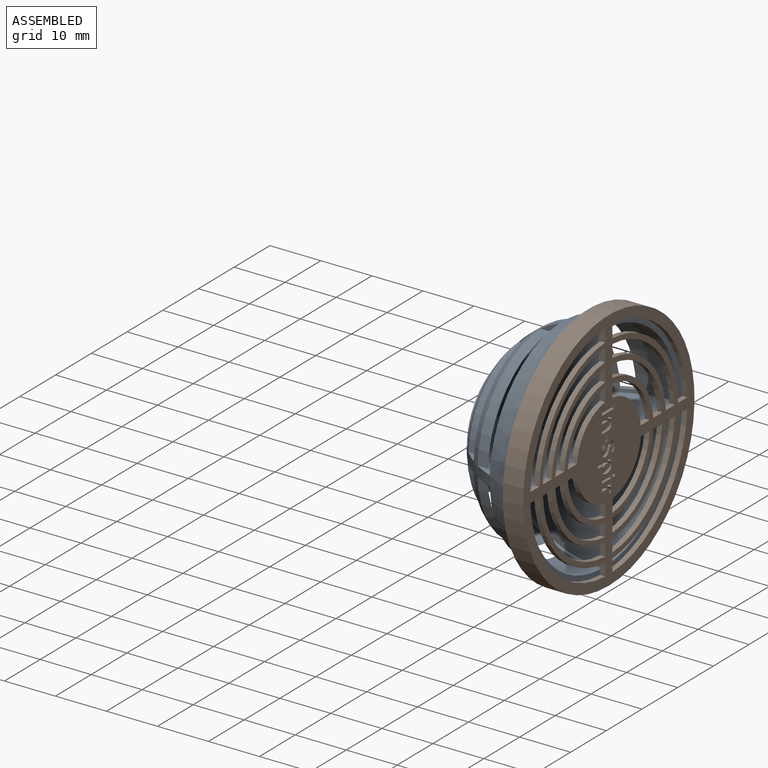
[diagram: assembled view]
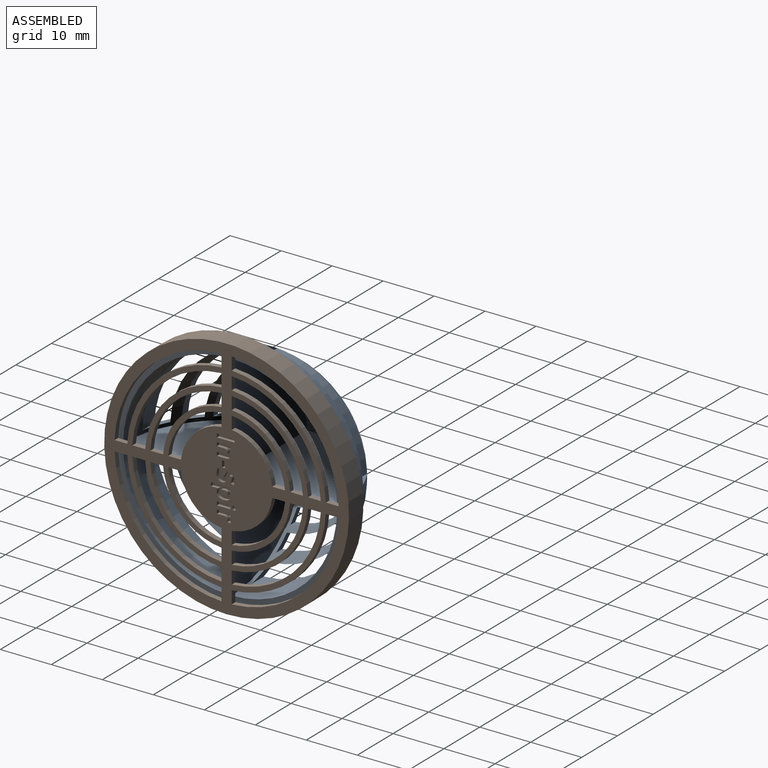
[diagram: assembled view, second angle]
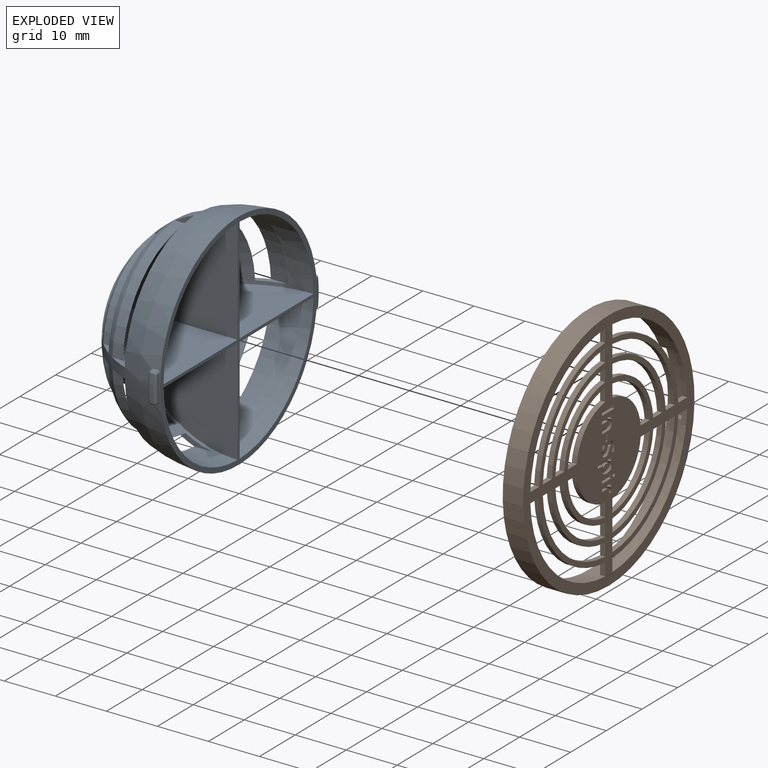
[diagram: exploded view]
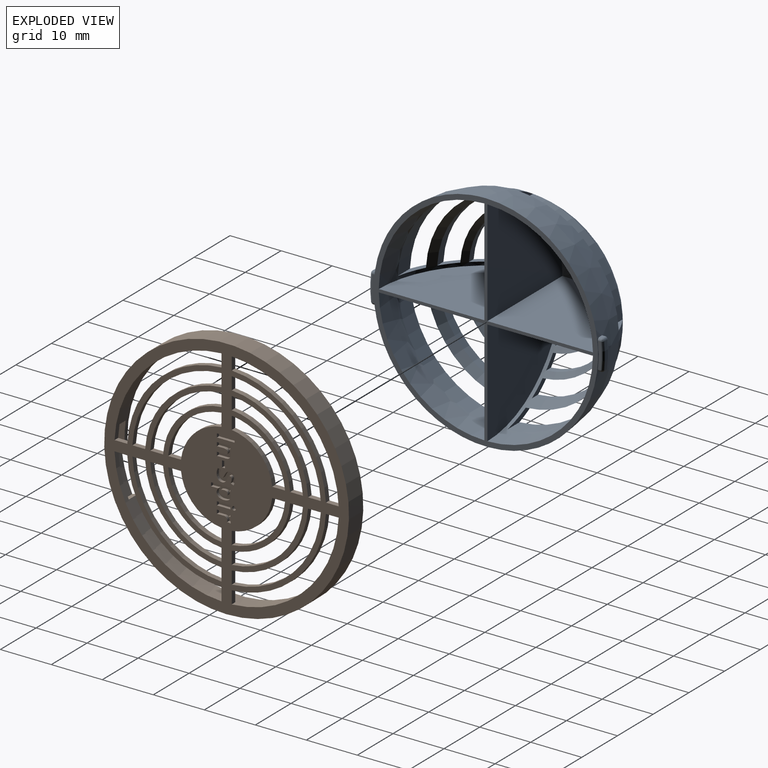
[diagram: exploded view, second angle]
ASSEMBLY  parts=2 mates=2
PART A: 114 faces, bbox 22.5x44.5x46.8 mm
  f0: sphere r=21mm, area 329.1mm2, adj f6,f15,f16,f17,f18,f19,f20,f21
  f1: sphere r=21mm, area 329.1mm2, adj f6,f31,f32,f33,f34,f47,f48,f49
  f2: sphere r=21mm, area 329.1mm2, adj f6,f27,f28,f29,f30,f55,f56,f57
  f3: plane 1.3x0.61mm, normal (0,-1,0), area 0.4mm2, adj f4,f78,f87,f91,f93
  f4: sphere r=22mm, area 1829.3mm2, adj f3,f6,f7,f8,f9,f10,f11,f12
  f5: sphere r=21mm, area 329.1mm2, adj f6,f7,f8,f9,f10,f11,f12,f13
  f6: plane 44.17x44.02mm, normal (1,0,0), area 184.9mm2, adj f0,f1,f2,f4,f5,f78,f80,f106
  f7: plane 7.22x1.92mm, normal (0,-1,0), area 4.8mm2, adj f4,f5,f8,f10
  f8: cylinder r=20.5mm len=19.48mm, axis (1,0,0), area 103.6mm2, adj f4,f5,f7,f9
  f9: plane 7.22x1.92mm, normal (0,0,1), area 4.8mm2, adj f4,f5,f8,f10
  f10: cylinder r=18.6mm len=17.57mm, axis (1,0,0), area 54.4mm2, adj f4,f5,f7,f9
  f11: plane 2.45x2.36mm, normal (0,-1,0), area 2.7mm2, adj f4,f5,f12,f14
  f12: cylinder r=10.8mm len=9.75mm, axis (1,0,0), area 17.3mm2, adj f4,f5,f11,f13
  f13: plane 2.45x2.36mm, normal (0,0,1), area 2.7mm2, adj f4,f5,f12,f14
  f14: cylinder r=8.4mm len=7.34mm, axis (1,0,0), area 12.2mm2, adj f4,f5,f11,f13
  f15: plane 4.47x2.42mm, normal (0,0,-1), area 3.7mm2, adj f0,f4,f16,f18
  f16: cylinder r=17.6mm len=16.57mm, axis (1,0,0), area 44.7mm2, adj f0,f4,f15,f17
  f17: plane 4.47x2.42mm, normal (0,-1,0), area 3.7mm2, adj f0,f4,f16,f18
  f18: cylinder r=15.2mm len=14.17mm, axis (1,0,0), area 30.9mm2, adj f0,f4,f15,f17
  f19: plane 3.12x2.43mm, normal (0,0,-1), area 3mm2, adj f0,f4,f20,f22
  f20: cylinder r=14.2mm len=13.16mm, axis (1,0,0), area 27.1mm2, adj f0,f4,f19,f21
  f21: plane 3.12x2.43mm, normal (0,-1,0), area 3mm2, adj f0,f4,f20,f22
  f22: cylinder r=11.8mm len=10.76mm, axis (1,0,0), area 19.8mm2, adj f0,f4,f19,f21
  f23: plane 7.22x1.92mm, normal (0,0,-1), area 4.8mm2, adj f0,f4,f24,f26
  f24: cylinder r=20.5mm len=19.48mm, axis (1,0,0), area 103.6mm2, adj f0,f4,f23,f25
  f25: plane 7.22x1.92mm, normal (0,-1,0), area 4.8mm2, adj f0,f4,f24,f26
  f26: cylinder r=18.6mm len=17.57mm, axis (1,0,0), area 54.4mm2, adj f0,f4,f23,f25
  f27: plane 2.45x2.36mm, normal (0,0,-1), area 2.7mm2, adj f2,f4,f28,f30
  f28: cylinder r=8.4mm len=7.34mm, axis (1,0,0), area 12.2mm2, adj f2,f4,f27,f29
  f29: plane 2.45x2.36mm, normal (0,1,0), area 2.7mm2, adj f2,f4,f28,f30
  f30: cylinder r=10.8mm len=9.75mm, axis (1,0,0), area 17.3mm2, adj f2,f4,f27,f29
  f31: cylinder r=10.8mm len=9.75mm, axis (1,0,0), area 17.3mm2, adj f1,f4,f32,f34
  f32: plane 2.45x2.36mm, normal (0,1,0), area 2.7mm2, adj f1,f4,f31,f33
  f33: cylinder r=8.4mm len=7.34mm, axis (1,0,0), area 12.2mm2, adj f1,f4,f32,f34
  f34: plane 2.45x2.36mm, normal (0,0,1), area 2.7mm2, adj f1,f4,f31,f33
  f35: plane 2.45x2.36mm, normal (0,0,-1), area 2.7mm2, adj f0,f4,f36,f38
  f36: cylinder r=10.8mm len=9.75mm, axis (1,0,0), area 17.3mm2, adj f0,f4,f35,f37
  f37: plane 2.45x2.36mm, normal (0,-1,0), area 2.7mm2, adj f0,f4,f36,f38
  f38: cylinder r=8.4mm len=7.34mm, axis (1,0,0), area 12.2mm2, adj f0,f4,f35,f37
  f39: plane 3.12x2.43mm, normal (0,-1,0), area 3mm2, adj f4,f5,f40,f42
  f40: cylinder r=14.2mm len=13.16mm, axis (1,0,0), area 27.1mm2, adj f4,f5,f39,f41
  f41: plane 3.12x2.43mm, normal (0,0,1), area 3mm2, adj f4,f5,f40,f42
  f42: cylinder r=11.8mm len=10.76mm, axis (1,0,0), area 19.8mm2, adj f4,f5,f39,f41
  f43: plane 4.47x2.42mm, normal (0,-1,0), area 3.7mm2, adj f4,f5,f44,f46
  f44: cylinder r=17.6mm len=16.57mm, axis (1,0,0), area 44.7mm2, adj f4,f5,f43,f45
  f45: plane 4.47x2.42mm, normal (0,0,1), area 3.7mm2, adj f4,f5,f44,f46
  f46: cylinder r=15.2mm len=14.17mm, axis (1,0,0), area 30.9mm2, adj f4,f5,f43,f45
  f47: cylinder r=15.2mm len=14.17mm, axis (1,0,0), area 30.9mm2, adj f1,f4,f48,f50
  f48: plane 4.47x2.42mm, normal (0,0,1), area 3.7mm2, adj f1,f4,f47,f49
  f49: cylinder r=17.6mm len=16.57mm, axis (1,0,0), area 44.7mm2, adj f1,f4,f48,f50
  f50: plane 4.47x2.42mm, normal (0,1,0), area 3.7mm2, adj f1,f4,f47,f49
  f51: cylinder r=11.8mm len=10.76mm, axis (1,0,0), area 19.8mm2, adj f1,f4,f52,f54
  f52: plane 3.12x2.43mm, normal (0,0,1), area 3mm2, adj f1,f4,f51,f53
  f53: cylinder r=14.2mm len=13.16mm, axis (1,0,0), area 27.1mm2, adj f1,f4,f52,f54
  f54: plane 3.12x2.43mm, normal (0,1,0), area 3mm2, adj f1,f4,f51,f53
  f55: plane 4.47x2.42mm, normal (0,0,-1), area 3.7mm2, adj f2,f4,f56,f58
  f56: cylinder r=15.2mm len=14.17mm, axis (1,0,0), area 30.9mm2, adj f2,f4,f55,f57
  f57: plane 4.47x2.42mm, normal (0,1,0), area 3.7mm2, adj f2,f4,f56,f58
  f58: cylinder r=17.6mm len=16.57mm, axis (1,0,0), area 44.7mm2, adj f2,f4,f55,f57
  f59: plane 3.12x2.43mm, normal (0,0,-1), area 3mm2, adj f2,f4,f60,f62
  f60: cylinder r=11.8mm len=10.76mm, axis (1,0,0), area 19.8mm2, adj f2,f4,f59,f61
  f61: plane 3.12x2.43mm, normal (0,1,0), area 3mm2, adj f2,f4,f60,f62
  f62: cylinder r=14.2mm len=13.16mm, axis (1,0,0), area 27.1mm2, adj f2,f4,f59,f61
  f63: plane 7.22x1.92mm, normal (0,0,-1), area 4.8mm2, adj f2,f4,f64,f66
  f64: cylinder r=18.6mm len=17.57mm, axis (1,0,0), area 54.4mm2, adj f2,f4,f63,f65
  f65: plane 7.22x1.92mm, normal (0,1,0), area 4.8mm2, adj f2,f4,f64,f66
  f66: cylinder r=20.5mm len=19.48mm, axis (1,0,0), area 103.6mm2, adj f2,f4,f63,f65
  f67: cylinder r=18.6mm len=17.57mm, axis (1,0,0), area 54.4mm2, adj f1,f4,f68,f70
  f68: plane 7.22x1.92mm, normal (0,0,1), area 4.8mm2, adj f1,f4,f67,f69
  f69: cylinder r=20.5mm len=19.48mm, axis (1,0,0), area 103.6mm2, adj f1,f4,f68,f70
  f70: plane 7.22x1.92mm, normal (0,1,0), area 4.8mm2, adj f1,f4,f67,f69
  f71: plane 1.3x0.61mm, normal (0,-1,0), area 0.4mm2, adj f4,f80,f94,f96,f97
  f72: plane 1.3x0.61mm, normal (0,1,0), area 0.4mm2, adj f4,f80,f99,f103,f105
  f73: cylinder r=23mm len=5.11mm, axis (1,0,0), area 3.3mm2, adj f97,f98,f102,f103
  f74: plane 5x0.72mm, normal (-1,0,0), area 2.9mm2, adj f4,f94,f98,f99
  f75: plane 1.3x0.61mm, normal (0,1,0), area 0.4mm2, adj f4,f78,f82,f84,f85
  f76: cylinder r=23mm len=5.11mm, axis (1,0,0), area 3.3mm2, adj f85,f86,f90,f91
  f77: plane 5x0.72mm, normal (-1,0,0), area 2.9mm2, adj f4,f82,f86,f87
  f78: cylinder r=22mm len=6mm, axis (1,0,0), area 1.2mm2, adj f3,f6,f75,f79,f84,f93
  f79: plane 5x0.65mm, normal (1,0,0), area 2.5mm2, adj f78,f84,f90,f93
  f80: cylinder r=22mm len=6mm, axis (1,0,0), area 1.2mm2, adj f6,f71,f72,f81,f96,f105
  f81: plane 5x0.65mm, normal (1,0,0), area 2.5mm2, adj f80,f96,f102,f105
  f82: cylinder r=0.5mm len=0.61mm, axis (0,0,-1), area 0.5mm2, adj f4,f75,f77,f83
  f83: sphere r=0.5mm, area 0.2mm2, adj f82,f85,f86
  f84: cylinder r=0.5mm len=0.57mm, axis (0,0,1), area 0.4mm2, adj f75,f78,f79,f88
  f85: cylinder r=0.5mm len=0.65mm, axis (1,0,0), area 0.5mm2, adj f75,f76,f83,f88
  f86: torus R=22.5mm, axis (1,0,0), area 4mm2, adj f76,f77,f83,f89
  f87: cylinder r=0.5mm len=0.61mm, axis (0,0,1), area 0.5mm2, adj f3,f4,f77,f89
  f88: sphere r=0.5mm, area 0.2mm2, adj f84,f85,f90
  f89: sphere r=0.5mm, area 0.2mm2, adj f86,f87,f91
  f90: torus R=22.5mm, axis (1,0,0), area 4mm2, adj f76,f79,f88,f92
  f91: cylinder r=0.5mm len=0.65mm, axis (1,0,0), area 0.5mm2, adj f3,f76,f89,f92
  f92: sphere r=0.5mm, area 0.4mm2, adj f90,f91,f93
  f93: cylinder r=0.5mm len=0.57mm, axis (0,0,-1), area 0.4mm2, adj f3,f78,f79,f92
  f94: cylinder r=0.5mm len=0.61mm, axis (0,0,1), area 0.5mm2, adj f4,f71,f74,f95
  f95: sphere r=0.5mm, area 0.2mm2, adj f94,f97,f98
  f96: cylinder r=0.5mm len=0.57mm, axis (0,0,-1), area 0.4mm2, adj f71,f80,f81,f100
  f97: cylinder r=0.5mm len=0.65mm, axis (1,0,0), area 0.5mm2, adj f71,f73,f95,f100
  f98: torus R=22.5mm, axis (1,0,0), area 4mm2, adj f73,f74,f95,f101
  f99: cylinder r=0.5mm len=0.61mm, axis (0,0,-1), area 0.5mm2, adj f4,f72,f74,f101
  f100: sphere r=0.5mm, area 0.2mm2, adj f96,f97,f102
  f101: sphere r=0.5mm, area 0.2mm2, adj f98,f99,f103
  f102: torus R=22.5mm, axis (1,0,0), area 4mm2, adj f73,f81,f100,f104
  f103: cylinder r=0.5mm len=0.65mm, axis (1,0,0), area 0.5mm2, adj f72,f73,f101,f104
  f104: sphere r=0.5mm, area 0.2mm2, adj f102,f103,f105
  f105: cylinder r=0.5mm len=0.57mm, axis (0,0,1), area 0.4mm2, adj f72,f80,f81,f104
  f106: plane 21.51x21.21mm, normal (0,1,0), area 340mm2, adj f2,f6,f113
  f107: plane 21.51x21.21mm, normal (0,0,-1), area 340mm2, adj f0,f6,f108
  f108: plane 21.51x21.21mm, normal (0,-1,0), area 340mm2, adj f0,f6,f107
  f109: plane 21.51x21.21mm, normal (0,-1,0), area 340mm2, adj f5,f6,f110
  f110: plane 21.51x21.21mm, normal (0,0,1), area 340mm2, adj f5,f6,f109
  f111: plane 21.51x21.21mm, normal (0,0,1), area 340mm2, adj f1,f6,f112
  f112: plane 21.51x21.21mm, normal (0,1,0), area 340mm2, adj f1,f6,f111
  f113: plane 21.51x21.21mm, normal (0,0,-1), area 340mm2, adj f2,f6,f106
PART B: 189 faces, bbox 48x48x4 mm
  f0: plane 48x48mm, normal (0,0,1), area 891.9mm2, adj f5,f6,f7,f8,f9,f10,f11,f12
  f1: cylinder r=22.25mm len=42.26mm, axis (0,0,1), area 174.7mm2, adj f3,f4,f73,f74,f78,f81
  f2: cylinder r=22.25mm len=42.35mm, axis (0,0,1), area 175.6mm2, adj f3,f4,f70,f71,f76,f77
  f3: plane 48x48mm, normal (0,0,-1), area 237.1mm2, adj f1,f2,f5,f72,f75,f76,f77,f78
  f4: plane 47x44.5mm, normal (0,0,-1), area 694.9mm2, adj f1,f2,f6,f7,f8,f9,f10,f11
  f5: cylinder r=24mm len=48mm, axis (0,0,-1), area 603.2mm2, adj f0,f3
  f6: plane 2.5x1mm, normal (-1,0,0), area 2.5mm2, adj f0,f4,f7,f9
  f7: cylinder r=22mm len=20.98mm, axis (0,0,1), area 32.6mm2, adj f0,f4,f6,f8
  f8: plane 2.5x1mm, normal (0,1,0), area 2.5mm2, adj f0,f4,f7,f9
  f9: cylinder r=19.5mm len=18.47mm, axis (0,0,1), area 28.6mm2, adj f0,f4,f6,f8
  f10: plane 2.51x1mm, normal (-1,0,0), area 2.5mm2, adj f0,f4,f11,f13
  f11: cylinder r=12.5mm len=11.46mm, axis (0,0,1), area 17.6mm2, adj f0,f4,f10,f12
  f12: plane 2.51x1mm, normal (0,-1,0), area 2.5mm2, adj f0,f4,f11,f13
  f13: cylinder r=15mm len=13.97mm, axis (0,0,1), area 21.6mm2, adj f0,f4,f10,f12
  f14: cylinder r=9mm len=7.94mm, axis (0,0,1), area 12.1mm2, adj f0,f4,f15,f17
  f15: plane 2.51x1mm, normal (1,0,0), area 2.5mm2, adj f0,f4,f14,f16
  f16: cylinder r=11.5mm len=10.46mm, axis (0,0,1), area 16.1mm2, adj f0,f4,f15,f17
  f17: plane 2.51x1mm, normal (0,-1,0), area 2.5mm2, adj f0,f4,f14,f16
  f18: cylinder r=16mm len=14.97mm, axis (0,0,1), area 23.1mm2, adj f0,f4,f19,f21
  f19: plane 2.5x1mm, normal (1,0,0), area 2.5mm2, adj f0,f4,f18,f20
  f20: cylinder r=18.5mm len=17.47mm, axis (0,0,1), area 27.1mm2, adj f0,f4,f19,f21
  f21: plane 2.5x1mm, normal (0,-1,0), area 2.5mm2, adj f0,f4,f18,f20
  f22: cylinder r=12.5mm len=11.46mm, axis (0,0,1), area 17.6mm2, adj f0,f4,f23,f25
  f23: plane 2.51x1mm, normal (1,0,0), area 2.5mm2, adj f0,f4,f22,f24
  f24: cylinder r=15mm len=13.97mm, axis (0,0,1), area 21.6mm2, adj f0,f4,f23,f25
  f25: plane 2.51x1mm, normal (0,-1,0), area 2.5mm2, adj f0,f4,f22,f24
  f26: plane 2.5x1mm, normal (-1,0,0), area 2.5mm2, adj f0,f4,f27,f29
  f27: cylinder r=16mm len=14.97mm, axis (0,0,1), area 23.1mm2, adj f0,f4,f26,f28
  f28: plane 2.5x1mm, normal (0,-1,0), area 2.5mm2, adj f0,f4,f27,f29
  f29: cylinder r=18.5mm len=17.47mm, axis (0,0,1), area 27.1mm2, adj f0,f4,f26,f28
  f30: plane 2.5x1mm, normal (-1,0,0), area 2.5mm2, adj f0,f4,f31,f33
  f31: cylinder r=19.5mm len=18.47mm, axis (0,0,1), area 28.6mm2, adj f0,f4,f30,f32
  f32: plane 2.5x1mm, normal (0,-1,0), area 2.5mm2, adj f0,f4,f31,f33
  f33: cylinder r=22mm len=20.98mm, axis (0,0,1), area 32.6mm2, adj f0,f4,f30,f32
  f34: plane 2.51x1mm, normal (-1,0,0), area 2.5mm2, adj f0,f4,f35,f37
  f35: cylinder r=9mm len=7.94mm, axis (0,0,1), area 12.1mm2, adj f0,f4,f34,f36
  f36: plane 2.51x1mm, normal (0,-1,0), area 2.5mm2, adj f0,f4,f35,f37
  f37: cylinder r=11.5mm len=10.46mm, axis (0,0,1), area 16.1mm2, adj f0,f4,f34,f36
  f38: cylinder r=11.5mm len=10.46mm, axis (0,0,1), area 16.1mm2, adj f0,f4,f39,f41
  f39: plane 2.51x1mm, normal (1,0,0), area 2.5mm2, adj f0,f4,f38,f40
  f40: cylinder r=9mm len=7.94mm, axis (0,0,1), area 12.1mm2, adj f0,f4,f39,f41
  f41: plane 2.51x1mm, normal (0,1,0), area 2.5mm2, adj f0,f4,f38,f40
  f42: plane 2.51x1mm, normal (-1,0,0), area 2.5mm2, adj f0,f4,f43,f45
  f43: cylinder r=11.5mm len=10.46mm, axis (0,0,1), area 16.1mm2, adj f0,f4,f42,f44
  f44: plane 2.51x1mm, normal (0,1,0), area 2.5mm2, adj f0,f4,f43,f45
  f45: cylinder r=9mm len=7.94mm, axis (0,0,1), area 12.1mm2, adj f0,f4,f42,f44
  f46: plane 2.5x1mm, normal (-1,0,0), area 2.5mm2, adj f0,f4,f47,f49
  f47: cylinder r=18.5mm len=17.47mm, axis (0,0,1), area 27.1mm2, adj f0,f4,f46,f48
  f48: plane 2.5x1mm, normal (0,1,0), area 2.5mm2, adj f0,f4,f47,f49
  f49: cylinder r=16mm len=14.97mm, axis (0,0,1), area 23.1mm2, adj f0,f4,f46,f48
  f50: plane 2.51x1mm, normal (-1,0,0), area 2.5mm2, adj f0,f4,f51,f53
  f51: cylinder r=15mm len=13.97mm, axis (0,0,1), area 21.6mm2, adj f0,f4,f50,f52
  f52: plane 2.51x1mm, normal (0,1,0), area 2.5mm2, adj f0,f4,f51,f53
  f53: cylinder r=12.5mm len=11.46mm, axis (0,0,1), area 17.6mm2, adj f0,f4,f50,f52
  f54: cylinder r=19.5mm len=18.47mm, axis (0,0,1), area 28.6mm2, adj f0,f4,f55,f57
  f55: plane 2.5x1mm, normal (1,0,0), area 2.5mm2, adj f0,f4,f54,f56
  f56: cylinder r=22mm len=20.98mm, axis (0,0,1), area 32.6mm2, adj f0,f4,f55,f57
  f57: plane 2.5x1mm, normal (0,-1,0), area 2.5mm2, adj f0,f4,f54,f56
  f58: cylinder r=22mm len=20.98mm, axis (0,0,1), area 32.6mm2, adj f0,f4,f59,f61
  f59: plane 2.5x1mm, normal (1,0,0), area 2.5mm2, adj f0,f4,f58,f60
  f60: cylinder r=19.5mm len=18.47mm, axis (0,0,1), area 28.6mm2, adj f0,f4,f59,f61
  f61: plane 2.5x1mm, normal (0,1,0), area 2.5mm2, adj f0,f4,f58,f60
  f62: cylinder r=15mm len=13.97mm, axis (0,0,1), area 21.6mm2, adj f0,f4,f63,f65
  f63: plane 2.51x1mm, normal (1,0,0), area 2.5mm2, adj f0,f4,f62,f64
  f64: cylinder r=12.5mm len=11.46mm, axis (0,0,1), area 17.6mm2, adj f0,f4,f63,f65
  f65: plane 2.51x1mm, normal (0,1,0), area 2.5mm2, adj f0,f4,f62,f64
  f66: cylinder r=18.5mm len=17.47mm, axis (0,0,1), area 27.1mm2, adj f0,f4,f67,f69
  f67: plane 2.5x1mm, normal (1,0,0), area 2.5mm2, adj f0,f4,f66,f68
  f68: cylinder r=16mm len=14.97mm, axis (0,0,1), area 23.1mm2, adj f0,f4,f67,f69
  f69: plane 2.5x1mm, normal (0,1,0), area 2.5mm2, adj f0,f4,f66,f68
  f70: plane 2.2x1.26mm, normal (-1,0,0), area 2.8mm2, adj f2,f4,f71,f72
  f71: plane 6.5x1.49mm, normal (0,0,1), area 8.2mm2, adj f2,f70,f72,f77
  f72: cylinder r=23.5mm len=13.16mm, axis (0,0,1), area 35.3mm2, adj f3,f4,f70,f71,f77,f80
  f73: plane 2.2x1.26mm, normal (1,0,0), area 2.8mm2, adj f1,f4,f74,f75
  f74: plane 5.52x1.49mm, normal (0,0,1), area 6.9mm2, adj f1,f73,f75,f81
  f75: cylinder r=23.5mm len=13.16mm, axis (0,0,1), area 35.5mm2, adj f3,f4,f73,f74,f76,f81
  f76: plane 3x1.21mm, normal (-0.96,-0.29,0), area 3.8mm2, adj f2,f3,f4,f75
  f77: plane 1.26x0.8mm, normal (-1,0,0), area 1mm2, adj f2,f3,f71,f72
  f78: plane 3x0.77mm, normal (0.96,0.29,0), area 2.4mm2, adj f1,f3,f4,f79
  f79: cylinder r=23.5mm len=3mm, axis (0,0,1), area 0.7mm2, adj f3,f4,f78,f80
  f80: plane 3x0.44mm, normal (0.96,0.29,0), area 1.4mm2, adj f3,f4,f72,f79
  f81: cylinder r=1mm len=1.38mm, axis (0,1,0), area 1.7mm2, adj f1,f3,f74,f75
  f82: plane 0.72x0.6mm, normal (0,1,0), area 0.4mm2, adj f0,f83,f98,f99
  f83: plane 1.73x0.6mm, normal (-1,0,0), area 1mm2, adj f0,f82,f84,f99
  f84: extruded ~0.72x0.6mm, area 0.5mm2, adj f0,f83,f85,f99
  f85: extruded ~0.7x0.6mm, area 0.5mm2, adj f0,f84,f86,f99
  f86: extruded ~0.6x0.48mm, area 0.3mm2, adj f0,f85,f87,f99
  f87: extruded ~0.6x0.33mm, area 0.3mm2, adj f0,f86,f88,f99
  f88: plane 0.6x0.04mm, normal (0,-1,0), area 0mm2, adj f0,f87,f89,f99
  f89: plane 0.6x0.34mm, normal (-0.96,-0.28,0), area 0.2mm2, adj f0,f88,f90,f99
  f90: plane 0.6x0.55mm, normal (0,-1,0), area 0.3mm2, adj f0,f89,f91,f99
  f91: plane 2.65x0.6mm, normal (1,0,0), area 1.6mm2, adj f0,f90,f92,f99
  f92: plane 0.72x0.6mm, normal (0,1,0), area 0.4mm2, adj f0,f91,f93,f99
  f93: plane 1.25x0.6mm, normal (-1,0,0), area 0.7mm2, adj f0,f92,f94,f99
  f94: extruded ~0.67x0.6mm, area 0.4mm2, adj f0,f93,f95,f99
  f95: extruded ~0.6x0.44mm, area 0.3mm2, adj f0,f94,f96,f99
  f96: extruded ~0.6x0.33mm, area 0.2mm2, adj f0,f95,f97,f99
  f97: extruded ~0.6x0.43mm, area 0.3mm2, adj f0,f96,f98,f99
  f98: plane 1.55x0.6mm, normal (1,0,0), area 0.9mm2, adj f0,f82,f97,f99
  f99: plane 2.7x2.45mm, normal (0,0,1), area 4.3mm2, adj f82,f83,f84,f85,f86,f87,f88,f89
  f100: plane 0.6x0.59mm, normal (1,0,0), area 0.4mm2, adj f0,f101,f103,f104
  f101: plane 1.27x0.6mm, normal (0,1,0), area 0.8mm2, adj f0,f100,f102,f104
  f102: plane 0.6x0.59mm, normal (-1,0,0), area 0.4mm2, adj f0,f101,f103,f104
  f103: plane 1.27x0.6mm, normal (0,-1,0), area 0.8mm2, adj f0,f100,f102,f104
  f104: plane 1.27x0.59mm, normal (0,0,1), area 0.8mm2, adj f100,f101,f102,f103
  f105: extruded ~0.74x0.6mm, area 0.5mm2, adj f0,f106,f132,f133
  f106: extruded ~0.6x0.57mm, area 0.4mm2, adj f0,f105,f107,f133
  f107: extruded ~0.67x0.6mm, area 0.5mm2, adj f0,f106,f108,f133
  f108: extruded ~0.6x0.47mm, area 0.3mm2, adj f0,f107,f109,f133
  f109: extruded ~0.6x0.14mm, area 0.1mm2, adj f0,f108,f110,f133
  f110: extruded ~0.6x0.17mm, area 0.1mm2, adj f0,f109,f111,f133
  f111: extruded ~0.6x0.25mm, area 0.2mm2, adj f0,f110,f112,f133
  f112: extruded ~0.6x0.32mm, area 0.2mm2, adj f0,f111,f113,f133
  f113: extruded ~0.6x0.36mm, area 0.2mm2, adj f0,f112,f114,f133
  f114: extruded ~0.6x0.46mm, area 0.3mm2, adj f0,f113,f115,f133
  f115: plane 0.6x0.57mm, normal (-0.92,0.38,0), area 0.4mm2, adj f0,f114,f116,f133
  f116: extruded ~0.6x0.51mm, area 0.3mm2, adj f0,f115,f117,f133
  f117: extruded ~0.6x0.52mm, area 0.3mm2, adj f0,f116,f118,f133
  f118: extruded ~0.86x0.6mm, area 0.6mm2, adj f0,f117,f119,f133
  f119: extruded ~0.72x0.6mm, area 0.5mm2, adj f0,f118,f120,f133
  f120: extruded ~0.6x0.43mm, area 0.3mm2, adj f0,f119,f121,f133
  f121: extruded ~0.6x0.32mm, area 0.2mm2, adj f0,f120,f122,f133
  f122: extruded ~0.6x0.48mm, area 0.3mm2, adj f0,f121,f123,f133
  f123: extruded ~0.6x0.45mm, area 0.3mm2, adj f0,f122,f124,f133
  f124: extruded ~0.6x0.17mm, area 0.1mm2, adj f0,f123,f125,f133
  f125: extruded ~0.6x0.18mm, area 0.1mm2, adj f0,f124,f126,f133
  f126: extruded ~0.6x0.28mm, area 0.2mm2, adj f0,f125,f127,f133
  f127: extruded ~0.6x0.37mm, area 0.2mm2, adj f0,f126,f128,f133
  f128: extruded ~0.6x0.44mm, area 0.3mm2, adj f0,f127,f129,f133
  f129: extruded ~0.6x0.59mm, area 0.4mm2, adj f0,f128,f130,f133
  f130: plane 0.68x0.6mm, normal (1,0,0), area 0.4mm2, adj f0,f129,f131,f133
  f131: extruded ~0.98x0.6mm, area 0.6mm2, adj f0,f130,f132,f133
  f132: extruded ~0.94x0.6mm, area 0.6mm2, adj f0,f105,f131,f133
  f133: plane 3.56x2.26mm, normal (0,0,1), area 4.5mm2, adj f105,f106,f107,f108,f109,f110,f111,f112
  f134: extruded ~0.6x0.39mm, area 0.4mm2, adj f0,f135,f138,f139
  f135: extruded ~0.6x0.39mm, area 0.4mm2, adj f0,f134,f136,f139
  f136: extruded ~0.6x0.3mm, area 0.2mm2, adj f0,f135,f137,f139
  f137: extruded ~0.6x0.26mm, area 0.2mm2, adj f0,f136,f138,f139
  f138: extruded ~0.6x0.39mm, area 0.4mm2, adj f0,f134,f137,f139
  f139: plane 0.79x0.71mm, normal (0,0,1), area 0.5mm2, adj f134,f135,f136,f137,f138
  f140: plane 0.72x0.6mm, normal (0,1,0), area 0.4mm2, adj f0,f141,f143,f144
  f141: plane 2.65x0.6mm, normal (-1,0,0), area 1.6mm2, adj f0,f140,f142,f144
  f142: plane 0.72x0.6mm, normal (0,-1,0), area 0.4mm2, adj f0,f141,f143,f144
  f143: plane 2.65x0.6mm, normal (1,0,0), area 1.6mm2, adj f0,f140,f142,f144
  f144: plane 2.65x0.72mm, normal (0,0,1), area 1.9mm2, adj f140,f141,f142,f143
  f145: extruded ~0.6x0.24mm, area 0.1mm2, adj f0,f146,f157,f158
  f146: extruded ~0.6x0.46mm, area 0.3mm2, adj f0,f145,f147,f158
  f147: extruded ~0.6x0.36mm, area 0.3mm2, adj f0,f146,f148,f158
  f148: plane 0.6x0.04mm, normal (0,-1,0), area 0mm2, adj f0,f147,f149,f158
  f149: plane 0.6x0.45mm, normal (-0.97,-0.23,0), area 0.3mm2, adj f0,f148,f150,f158
  f150: plane 0.6x0.55mm, normal (0,-1,0), area 0.3mm2, adj f0,f149,f151,f158
  f151: plane 2.65x0.6mm, normal (1,0,0), area 1.6mm2, adj f0,f150,f152,f158
  f152: plane 0.72x0.6mm, normal (0,1,0), area 0.4mm2, adj f0,f151,f153,f158
  f153: plane 1.35x0.6mm, normal (-1,0,0), area 0.8mm2, adj f0,f152,f154,f158
  f154: extruded ~0.6x0.5mm, area 0.3mm2, adj f0,f153,f155,f158
  f155: extruded ~0.6x0.54mm, area 0.3mm2, adj f0,f154,f156,f158
  f156: extruded ~0.6x0.21mm, area 0.1mm2, adj f0,f155,f157,f158
  f157: plane 0.68x0.6mm, normal (-1,0.08,0), area 0.4mm2, adj f0,f145,f156,f158
  f158: plane 2.7x1.72mm, normal (0,0,1), area 2.5mm2, adj f145,f146,f147,f148,f149,f150,f151,f152
  f159: extruded ~0.6x0.39mm, area 0.3mm2, adj f160,f181,f182,f188
  f160: extruded ~0.6x0.38mm, area 0.3mm2, adj f159,f161,f182,f188
  f161: extruded ~0.6x0.59mm, area 0.4mm2, adj f160,f162,f182,f188
  f162: extruded ~0.8x0.6mm, area 0.6mm2, adj f161,f163,f182,f188
  f163: extruded ~0.6x0.4mm, area 0.3mm2, adj f162,f164,f182,f188
  f164: extruded ~0.61x0.6mm, area 0.4mm2, adj f163,f165,f182,f188
  f165: plane 0.6x0.08mm, normal (-1,0,0), area 0mm2, adj f164,f181,f182,f188
  f166: extruded ~0.73x0.6mm, area 0.5mm2, adj f0,f167,f180,f182
  f167: extruded ~0.6x0.54mm, area 0.3mm2, adj f0,f166,f168,f182
  f168: extruded ~0.6x0.48mm, area 0.4mm2, adj f0,f167,f169,f182
  f169: extruded ~0.74x0.6mm, area 0.5mm2, adj f0,f168,f170,f182
  f170: extruded ~1.01x0.6mm, area 0.6mm2, adj f0,f169,f171,f182
  f171: extruded ~0.74x0.6mm, area 0.5mm2, adj f0,f170,f172,f182
  f172: extruded ~0.75x0.6mm, area 0.5mm2, adj f0,f171,f173,f182
  f173: plane 0.6x0.03mm, normal (0,-1,0), area 0mm2, adj f0,f172,f174,f182
  f174: plane 0.6x0.34mm, normal (-0.96,-0.28,0), area 0.2mm2, adj f0,f173,f175,f182
  f175: plane 0.6x0.59mm, normal (0,-1,0), area 0.4mm2, adj f0,f174,f176,f182
  f176: plane 3.82x0.6mm, normal (1,0,0), area 2.3mm2, adj f0,f175,f177,f182
  f177: plane 0.72x0.6mm, normal (0,1,0), area 0.4mm2, adj f0,f176,f178,f182
  f178: plane 1.07x0.6mm, normal (-1,0,0), area 0.6mm2, adj f0,f177,f179,f182
  f179: extruded ~0.6x0.38mm, area 0.2mm2, adj f0,f178,f180,f182
  f180: plane 0.6x0.04mm, normal (0,1,0), area 0mm2, adj f0,f166,f179,f182
  f181: extruded ~0.6x0.54mm, area 0.3mm2, adj f159,f165,f182,f188
  f182: plane 3.87x2.47mm, normal (0,0,1), area 5.5mm2, adj f159,f160,f161,f162,f163,f164,f165,f166
  f183: plane 3.47x0.6mm, normal (1,0,0), area 2.1mm2, adj f0,f184,f186,f187
  f184: plane 0.74x0.6mm, normal (0,1,0), area 0.4mm2, adj f0,f183,f185,f187
  f185: plane 3.47x0.6mm, normal (-1,0,0), area 2.1mm2, adj f0,f184,f186,f187
  f186: plane 0.74x0.6mm, normal (0,-1,0), area 0.4mm2, adj f0,f183,f185,f187
  f187: plane 3.47x0.74mm, normal (0,0,1), area 2.5mm2, adj f183,f184,f185,f186
  f188: plane 1.58x1.01mm, normal (0,0,1), area 1.4mm2, adj f159,f160,f161,f162,f163,f164,f165,f181
PLACE A rot(axis=(1,0,0),90deg) t=(9.09,13.43,28.3)mm
PLACE B rot(axis=(0,1,0),90deg) t=(9.09,13.43,28.3)mm
MATE planar B.f75 <-> A.f30  axis (-1,0,0) through (9.09,13.43,28.3)mm
MATE slider A.f30 <-> B.f16  axis (1,0,0) through (9.09,13.43,28.3)mm
